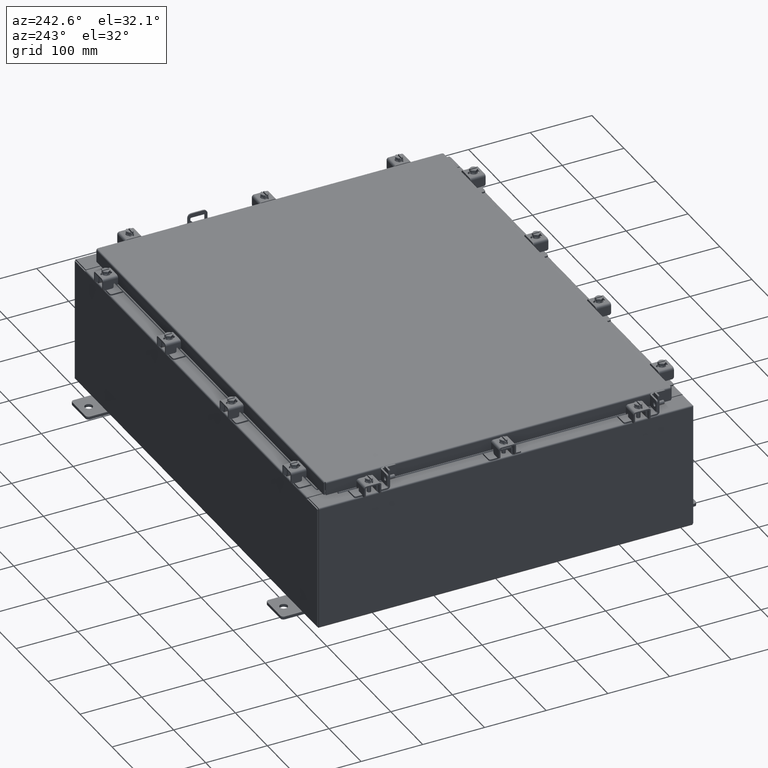
[diagram: clean part render]
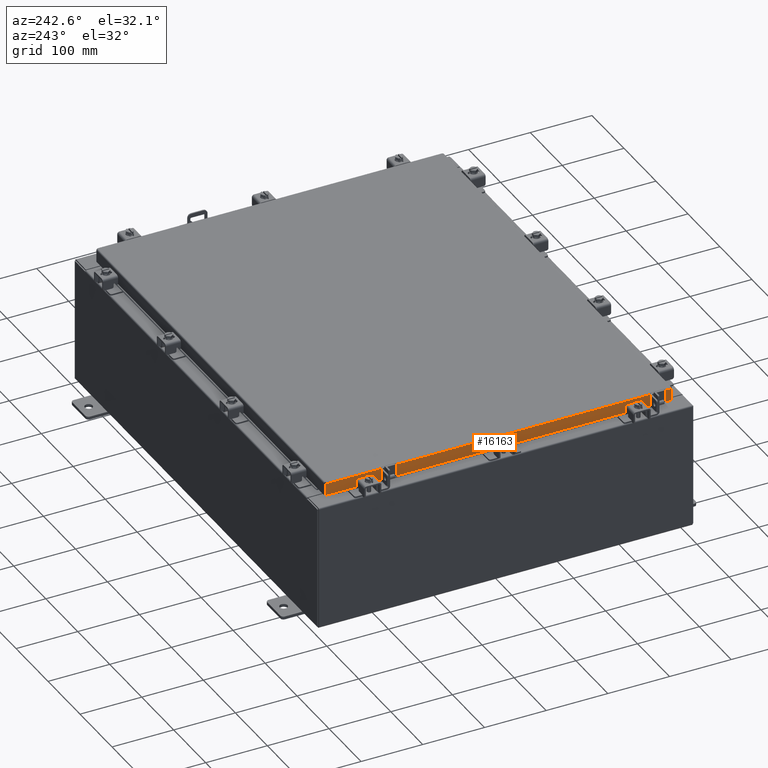
[diagram: same view with one face highlighted and labeled with its STEP entity id]
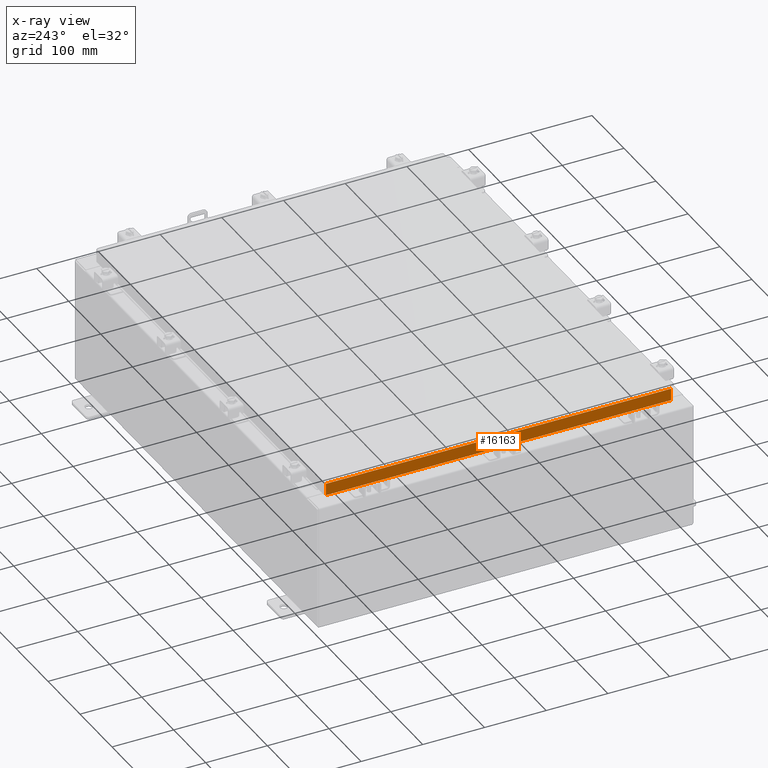
[diagram: x-ray of the same camera — body ghosted, the highlighted face saturated]
A machine part, auxiliary view. The second image highlights one B-rep face of the part: STEP entity #16163.
The next image is the same camera in x-ray: the body ghosted, the highlighted face saturated — about 0% of this face is hidden behind the body in this view.
In plain terms, the highlighted planar face has unit normal (1, 0, -0).
Its self-contained STEP definition (entity closure, byte-faithful):
#9 = VECTOR ( 'NONE', #4989, 39.37007874015748100 ) ;
#12 = VECTOR ( 'NONE', #19511, 39.37007874015748100 ) ;
#255 = CARTESIAN_POINT ( 'NONE',  ( -14.09399999999999400, -10.25515786437626400, -0.8500000000000010900 ) ) ;
#266 = CARTESIAN_POINT ( 'NONE',  ( -14.09399999999999900, -11.09399999999999800, -0.8499999999999999800 ) ) ;
#542 = LINE ( 'NONE', #19043, #9 ) ;
#1194 = LINE ( 'NONE', #255, #17631 ) ;
#1651 = LINE ( 'NONE', #266, #12 ) ;
#1860 = EDGE_CURVE ( 'NONE', #17295, #12016, #6106, .T. ) ;
#2022 = DIRECTION ( 'NONE',  ( -0.0000000000000000000, 1.000000000000000000, -0.0000000000000000000 ) ) ;
#2147 = EDGE_CURVE ( 'NONE', #11914, #12016, #5815, .T. ) ;
#2724 = CARTESIAN_POINT ( 'NONE',  ( -14.09399999999999900, 11.00515786437627200, -0.8499999999999966500 ) ) ;
#2929 = VERTEX_POINT ( 'NONE', #14769 ) ;
#3096 = VERTEX_POINT ( 'NONE', #20289 ) ;
#4989 = DIRECTION ( 'NONE',  ( -2.818880942772360100E-015, 6.982962677686267500E-015, -1.000000000000000000 ) ) ;
#5099 = DIRECTION ( 'NONE',  ( -2.818880942772360100E-015, 0.0000000000000000000, -1.000000000000000000 ) ) ;
#5464 = LINE ( 'NONE', #12935, #18926 ) ;
#5815 = LINE ( 'NONE', #15146, #9867 ) ;
#6106 = LINE ( 'NONE', #6704, #10154 ) ;
#6568 = EDGE_CURVE ( 'NONE', #2929, #14886, #1651, .T. ) ;
#6704 = CARTESIAN_POINT ( 'NONE',  ( -14.09399999999999900, -11.09399999999999800, -0.8499999999999999800 ) ) ;
#6764 = EDGE_CURVE ( 'NONE', #11914, #3096, #5464, .T. ) ;
#6793 = CARTESIAN_POINT ( 'NONE',  ( -14.09399999999999600, 0.0000000000000000000, 4.043135030623109600E-014 ) ) ;
#7551 = DIRECTION ( 'NONE',  ( 4.379057701015054300E-047, 1.000000000000000000, 1.169666303398706800E-016 ) ) ;
#8253 = ORIENTED_EDGE ( 'NONE', *, *, #2147, .T. ) ;
#9007 = EDGE_CURVE ( 'NONE', #14886, #17295, #1194, .T. ) ;
#9867 = VECTOR ( 'NONE', #15379, 39.37007874015748100 ) ;
#10154 = VECTOR ( 'NONE', #7551, 39.37007874015748100 ) ;
#10727 = ORIENTED_EDGE ( 'NONE', *, *, #9007, .F. ) ;
#11594 = EDGE_LOOP ( 'NONE', ( #16611, #8253, #15555, #10727, #17687, #21531 ) ) ;
#11914 = VERTEX_POINT ( 'NONE', #21688 ) ;
#12016 = VERTEX_POINT ( 'NONE', #2724 ) ;
#12031 = PLANE ( 'NONE',  #12156 ) ;
#12156 = AXIS2_PLACEMENT_3D ( 'NONE', #6793, #15593, #5099 ) ;
#12935 = CARTESIAN_POINT ( 'NONE',  ( -14.09399999999999600, -11.09399999999999800, -0.08770000000000026400 ) ) ;
#13273 = CARTESIAN_POINT ( 'NONE',  ( -14.09399999999999400, -10.25515786437626400, -0.8500000000000010900 ) ) ;
#14769 = CARTESIAN_POINT ( 'NONE',  ( -14.09399999999999900, -11.00515786437626400, -0.8499999999999999800 ) ) ;
#14886 = VERTEX_POINT ( 'NONE', #13273 ) ;
#15146 = CARTESIAN_POINT ( 'NONE',  ( -14.09399999999999600, 11.00515786437626700, 1.169230941288304600E-013 ) ) ;
#15219 = CARTESIAN_POINT ( 'NONE',  ( -14.09399999999999400, 10.25515786437627200, -0.8500000000000010900 ) ) ;
#15379 = DIRECTION ( 'NONE',  ( -2.818880942772360100E-015, 6.982962677686267500E-015, -1.000000000000000000 ) ) ;
#15555 = ORIENTED_EDGE ( 'NONE', *, *, #1860, .F. ) ;
#15593 = DIRECTION ( 'NONE',  ( 1.000000000000000000, 3.297150052053607500E-031, -2.818880942772360100E-015 ) ) ;
#16163 = ADVANCED_FACE ( 'NONE', ( #16758 ), #12031, .F. ) ;
#16611 = ORIENTED_EDGE ( 'NONE', *, *, #6764, .F. ) ;
#16758 = FACE_OUTER_BOUND ( 'NONE', #11594, .T. ) ;
#16770 = EDGE_CURVE ( 'NONE', #3096, #2929, #542, .T. ) ;
#17295 = VERTEX_POINT ( 'NONE', #15219 ) ;
#17631 = VECTOR ( 'NONE', #2022, 39.37007874015748100 ) ;
#17687 = ORIENTED_EDGE ( 'NONE', *, *, #6568, .F. ) ;
#18210 = DIRECTION ( 'NONE',  ( 3.297150052053608400E-031, -1.000000000000000000, -8.987264781119276500E-046 ) ) ;
#18926 = VECTOR ( 'NONE', #18210, 39.37007874015748100 ) ;
#19043 = CARTESIAN_POINT ( 'NONE',  ( -14.09399999999999600, -11.00515786437626900, -0.07470000000000015500 ) ) ;
#19511 = DIRECTION ( 'NONE',  ( 4.379057701015054300E-047, 1.000000000000000000, 1.169666303398706800E-016 ) ) ;
#20289 = CARTESIAN_POINT ( 'NONE',  ( -14.09399999999999600, -11.00515786437627100, -0.08770000000000026400 ) ) ;
#21531 = ORIENTED_EDGE ( 'NONE', *, *, #16770, .F. ) ;
#21688 = CARTESIAN_POINT ( 'NONE',  ( -14.09399999999999600, 11.00515786437626400, -0.08770000000000026400 ) ) ;